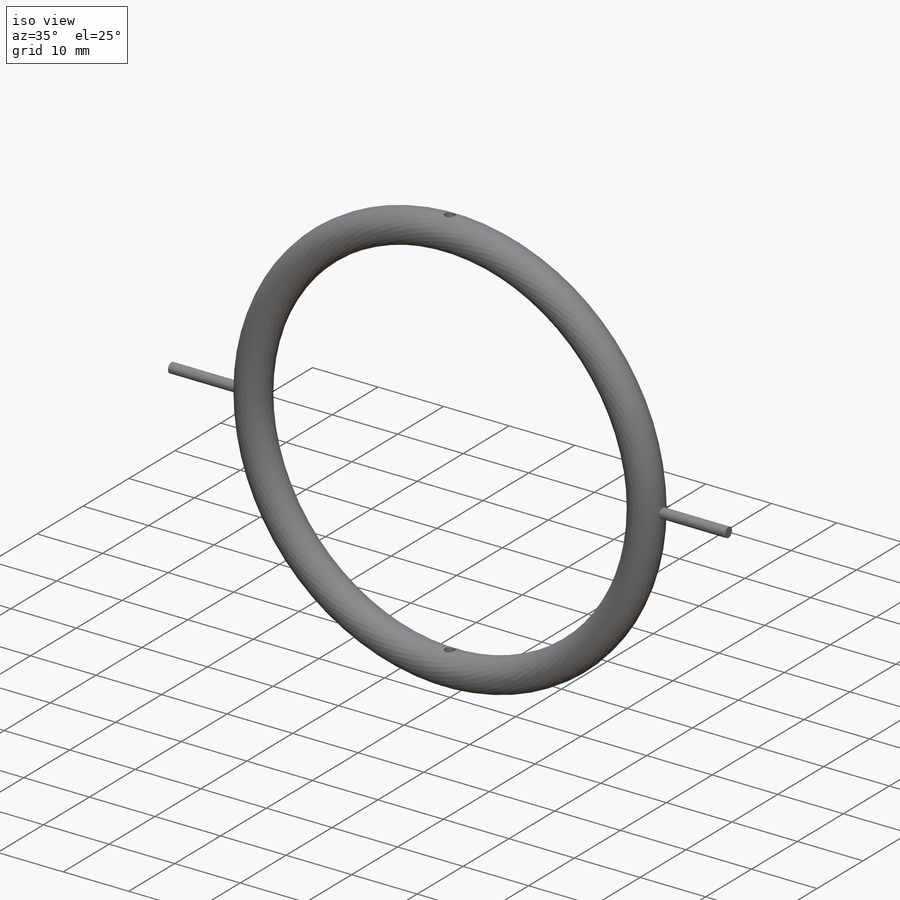
[diagram: iso view]
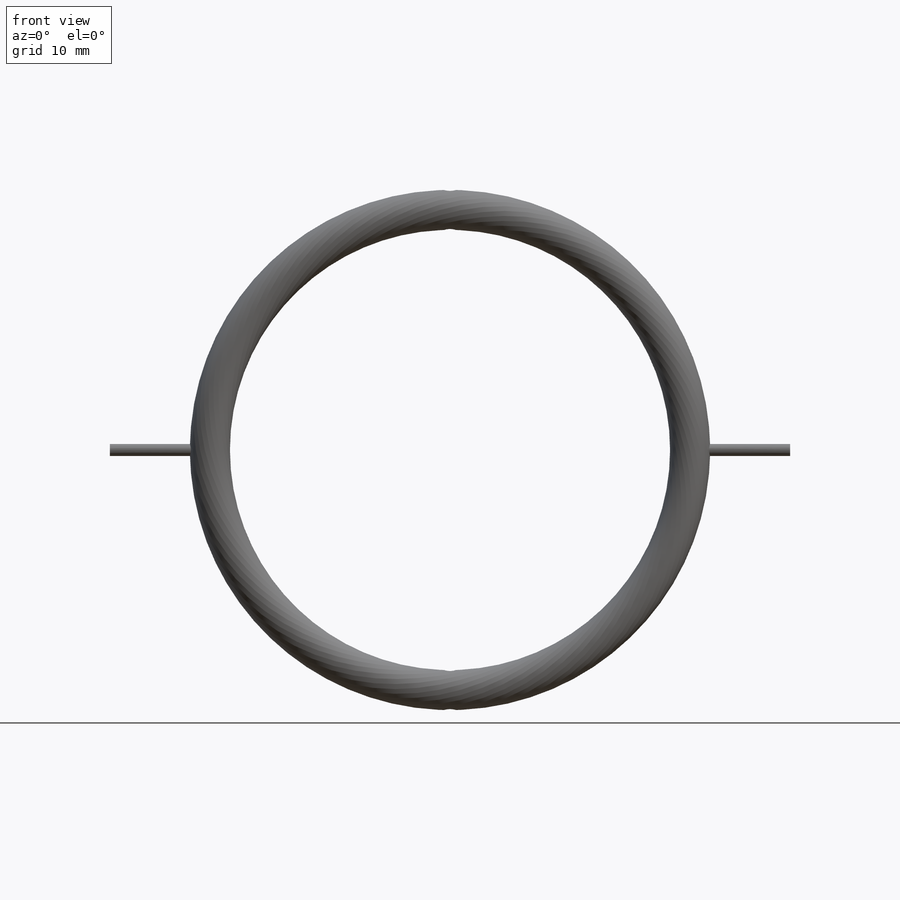
[diagram: front view]
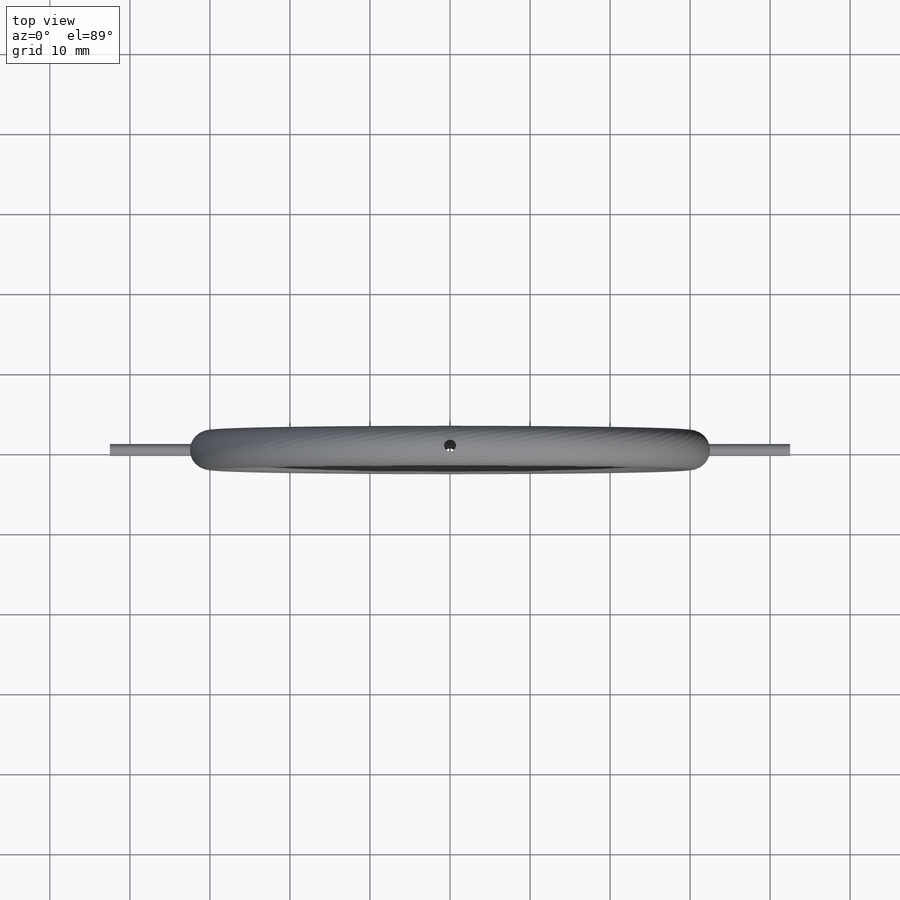
[diagram: top view]
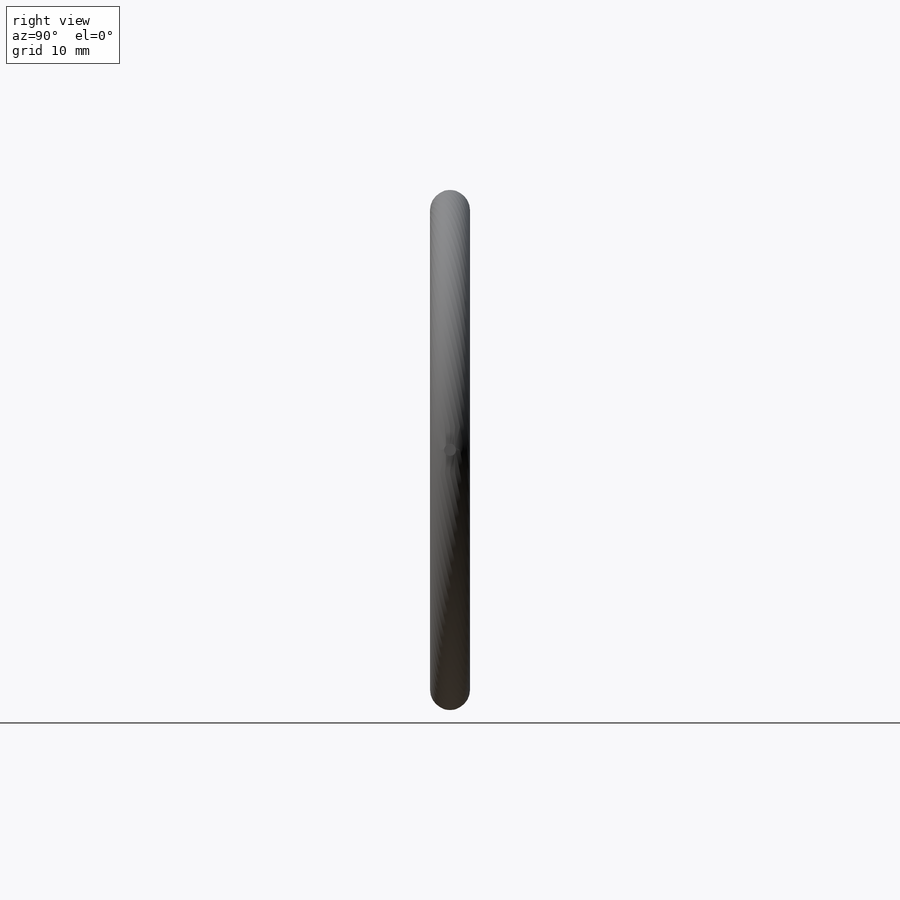
[diagram: right view]
SOLIDWORKS PART (.sldprt)
format: sldprt  version: not decoded by parser v0  size: 559,616 bytes
history: native  units: mm
features: sketch x4, material x1, revolve x1, plane x1, extrude x1, mirror x1, cut_extrude x1 + 1 further entry (+14 scaffold rows collapsed)
feature tree (25):
  scaffold x14  (default folders/planes/origin — collapsed)
  material  "Material <not specified>"
  "Design Table"
  sketch  "Sketch1"  dims[D1=5.0mm Diameter=30.0mm]
  revolve  "Revolve1"  Angle=360deg
  sketch  "Sketch2"  dims[D1=10.0mm]
  plane  "Plane1"
  sketch  "Sketch3"  dims[Pin Diameter=1.5mm]
  extrude  "Boss-Extrude1"  [1 undecoded]
  mirror  "Mirror1"
  sketch  "Sketch4"  dims[D1=1.5mm]
  cut_extrude  "Cut-Extrude1"  [1 undecoded]
decode coverage: 5 of 8 modeling features carry decoded parameters; 1 rows unclassified (native names shown)
note: 2 parameter values undecoded
note: suppression state not decoded; provenance and decode notes live in map.json
